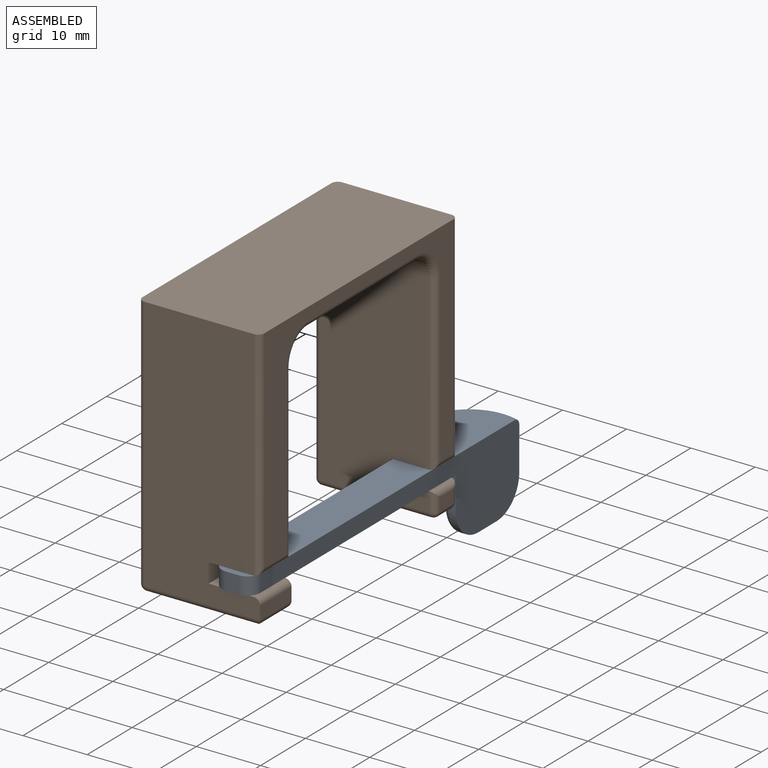
[diagram: assembled view]
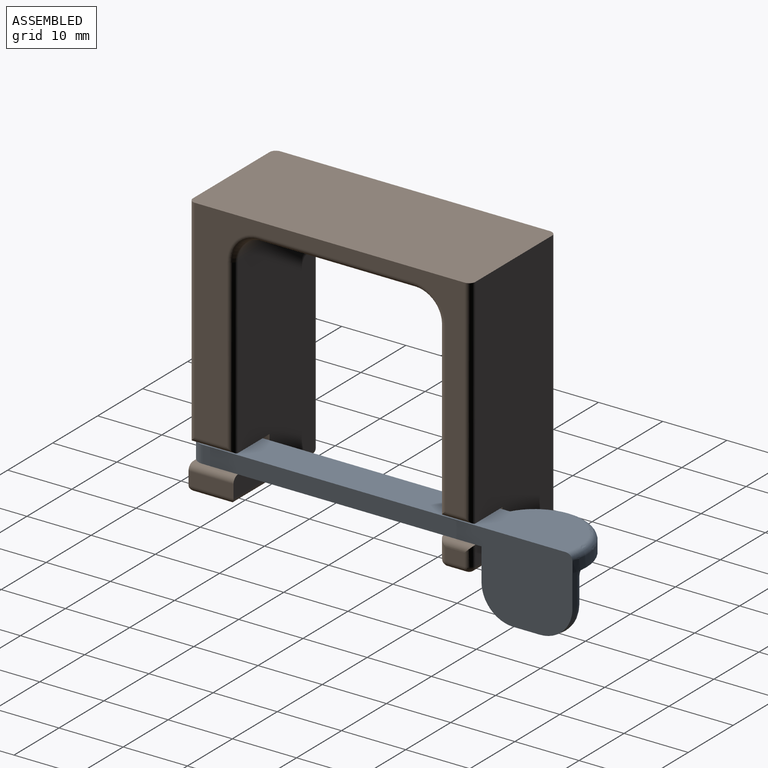
[diagram: assembled view, second angle]
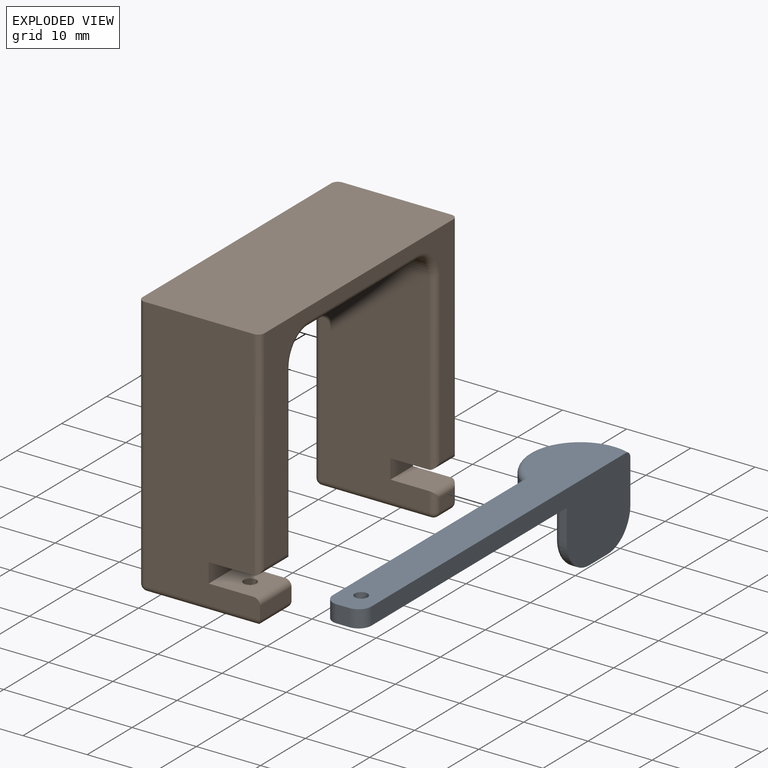
[diagram: exploded view]
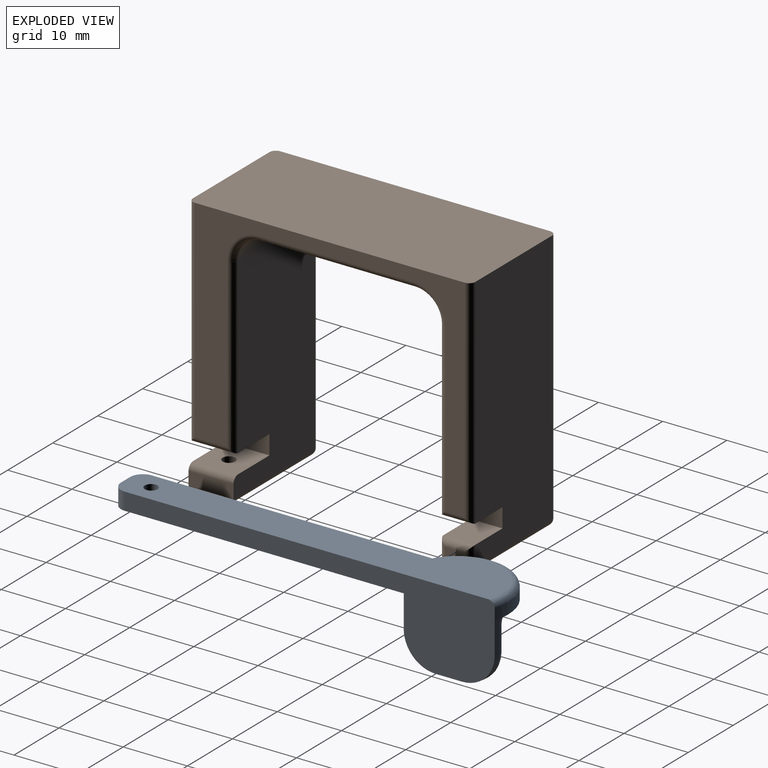
[diagram: exploded view, second angle]
ASSEMBLY  parts=2 mates=2
PART A: 25 faces, bbox 12.3x60.9x13.5 mm
  f0: bspline ~5.06x5mm, area 12.4mm2, adj f1,f2,f9,f16
  f1: cylinder r=1mm len=4mm, axis (0,0,-1), area 7mm2, adj f0,f3,f10,f16
  f2: cylinder r=1mm len=4.26mm, axis (0,-1,0), area 6.7mm2, adj f0,f15,f16,f17
  f3: bspline ~2.19x2.02mm, area 2.2mm2, adj f1,f10,f18,f19
  f4: plane 2.7x2mm, normal (0,-1,0), area 5.4mm2, adj f5,f13,f14,f19
  f5: cylinder r=2mm len=2.7mm, axis (0,0,-1), area 8.5mm2, adj f4,f6,f13,f19
  f6: plane 44.18x2.95mm, normal (-1,0,0), area 115.8mm2, adj f5,f11,f12,f13,f19
  f7: cylinder r=1mm len=2.7mm, axis (0,0,-1), area 8.5mm2, adj f8,f13,f19
  f8: cylinder r=1mm len=2.7mm, axis (0,0,-1), area 8.5mm2, adj f7,f13,f19
  f9: cylinder r=5mm len=5.22mm, axis (-0.99,0.17,0), area 7.3mm2, adj f0,f10,f15,f20
  f10: plane 5x1.1mm, normal (0.17,0.99,0), area 4.3mm2, adj f1,f3,f9,f19,f20
  f11: cylinder r=8mm len=15.19mm, axis (0,0,-1), area 40.9mm2, adj f6,f12,f19,f20
  f12: torus R=7mm, axis (0,0,-1), area 35.9mm2, adj f6,f11,f13,f20
  f13: plane 59.1x9.62mm, normal (0,0,1), area 377.8mm2, adj f4,f5,f6,f7,f8,f12,f14,f20
  f14: cylinder r=2mm len=2.7mm, axis (0,0,-1), area 8.5mm2, adj f4,f13,f19,f20
  f15: plane 4.26x1mm, normal (0,0,-1), area 4.2mm2, adj f2,f9,f20,f21
  f16: plane 12.32x8mm, normal (-1,0,0), area 91.6mm2, adj f0,f1,f2,f17,f18,f22
  f17: torus R=4mm, axis (1,0,0), area 11.4mm2, adj f2,f16,f21,f22
  f18: cylinder r=1mm len=12.66mm, axis (0,-1,0), area 19.6mm2, adj f3,f16,f19,f23
  f19: plane 60.46x10.95mm, normal (0,0,-1), area 358.3mm2, adj f3,f4,f5,f6,f7,f8,f10,f11
  f20: plane 57.96x13.06mm, normal (1,0,0), area 286.1mm2, adj f9,f10,f11,f12,f13,f14,f15,f19
  f21: cylinder r=5mm len=5mm, axis (1,0,0), area 7.9mm2, adj f15,f17,f20,f24
  f22: cylinder r=1mm len=4mm, axis (0,0,-1), area 6.3mm2, adj f16,f17,f23,f24
  f23: torus R=2mm, axis (0,1,0), area 2.1mm2, adj f18,f19,f22,f24
  f24: plane 5x1.27mm, normal (0,-1,0), area 5.1mm2, adj f19,f20,f21,f22,f23
PART B: 59 faces, bbox 19x44x41 mm
  f0: plane 2.04x2mm, normal (0,0,-1), area 3.1mm2, adj f1,f2
  f1: cylinder r=1mm len=9mm, axis (0,0,-1), area 28.3mm2, adj f0,f2,f10
  f2: cylinder r=1mm len=9mm, axis (0,0,-1), area 28.3mm2, adj f0,f1,f10
  f3: cylinder r=1mm len=7mm, axis (0,-1,0), area 9.9mm2, adj f10,f11,f19,f20
  f4: cylinder r=1mm len=7mm, axis (0,1,0), area 9.9mm2, adj f7,f12,f14,f22
  f5: cylinder r=1mm len=4mm, axis (0,0,-1), area 12.6mm2, adj f6,f8,f22
  f6: cylinder r=1mm len=4mm, axis (0,0,-1), area 12.6mm2, adj f5,f8,f22
  f7: cylinder r=1mm len=18mm, axis (1,0,0), area 27.7mm2, adj f4,f21,f22,f23
  f8: plane 7x7mm, normal (0,0,1), area 45.9mm2, adj f5,f6,f9,f13,f21,f24
  f9: plane 7x3mm, normal (1,0,0), area 21mm2, adj f8,f10,f21,f24
  f10: plane 7x7mm, normal (0,0,-1), area 45.9mm2, adj f1,f2,f3,f9,f21,f24
  f11: cylinder r=1mm len=27mm, axis (0,0,-1), area 41.8mm2, adj f3,f15,f19,f24
  f12: plane 7x2mm, normal (1,0,0), area 14mm2, adj f4,f13,f21,f24
  f13: cylinder r=1mm len=7mm, axis (0,1,0), area 11mm2, adj f8,f12,f21,f24
  f14: cylinder r=1mm len=18mm, axis (1,0,0), area 27.7mm2, adj f4,f22,f24,f25
  f15: torus R=5mm, axis (1,0,0), area 10.8mm2, adj f11,f16,f19,f26
  f16: cylinder r=1mm len=24mm, axis (0,1,0), area 37.7mm2, adj f15,f17,f19,f27
  f17: torus R=5mm, axis (1,0,0), area 10.8mm2, adj f16,f19,f31,f36
  f18: cylinder r=1mm len=5mm, axis (0,-1,0), area 6.7mm2, adj f19,f28,f35,f36
  f19: plane 42x33mm, normal (1,0,0), area 342.7mm2, adj f3,f11,f15,f16,f17,f18,f20,f28
  f20: cylinder r=1mm len=34mm, axis (0,0,-1), area 52.8mm2, adj f3,f19,f21,f37
  f21: plane 40x18mm, normal (0,-1,0), area 661.8mm2, adj f7,f8,f9,f10,f12,f13,f20,f37
  f22: plane 17x5mm, normal (0,0,-1), area 81.9mm2, adj f4,f5,f6,f7,f14,f39
  f23: sphere r=1mm, area 1.6mm2, adj f7,f38,f39
  f24: plane 33x18mm, normal (0,1,0), area 542.8mm2, adj f8,f9,f10,f11,f12,f13,f14,f26
  f25: sphere r=1mm, area 1.6mm2, adj f14,f39,f40
  f26: cylinder r=4mm len=17mm, axis (1,0,0), area 106.8mm2, adj f15,f24,f27,f41
  f27: plane 24x17mm, normal (0,0,-1), area 408mm2, adj f16,f26,f31,f42
  f28: cylinder r=1mm len=34mm, axis (0,0,1), area 52.8mm2, adj f18,f19,f37,f46
  f29: cylinder r=1mm len=3mm, axis (0,0,1), area 4.1mm2, adj f30,f46,f47,f48
  f30: cylinder r=1mm len=5mm, axis (0,1,0), area 6.7mm2, adj f29,f32,f33,f48
  f31: cylinder r=4mm len=17mm, axis (1,0,0), area 106.8mm2, adj f17,f27,f43,f50
  f32: cylinder r=1mm len=3mm, axis (0,0,-1), area 4.1mm2, adj f30,f48,f49,f50
  f33: plane 6x5mm, normal (0,0,1), area 30mm2, adj f30,f34,f46,f50
  f34: plane 5x3mm, normal (1,0,0), area 15mm2, adj f33,f35,f46,f50
  f35: plane 6x5mm, normal (0,0,-1), area 30mm2, adj f18,f34,f46,f50
  f36: cylinder r=1mm len=27mm, axis (0,0,-1), area 41.8mm2, adj f17,f18,f19,f50
  f37: plane 44x19mm, normal (0,0,1), area 835.1mm2, adj f19,f20,f21,f28,f38,f45,f46,f52
  f38: cylinder r=1mm len=40mm, axis (0,0,-1), area 62.8mm2, adj f21,f23,f37,f52
  f39: cylinder r=1mm len=5mm, axis (0,1,0), area 7.9mm2, adj f22,f23,f25,f52
  f40: cylinder r=1mm len=33mm, axis (0,0,-1), area 51.8mm2, adj f24,f25,f41,f52
  f41: torus R=5mm, axis (1,0,0), area 10.8mm2, adj f26,f40,f42,f52
  f42: cylinder r=1mm len=24mm, axis (0,1,0), area 37.7mm2, adj f27,f41,f43,f52
  f43: torus R=5mm, axis (1,0,0), area 10.8mm2, adj f31,f42,f44,f52
  f44: cylinder r=1mm len=33mm, axis (0,0,-1), area 51.8mm2, adj f43,f50,f51,f52
  f45: cylinder r=1mm len=40mm, axis (0,0,1), area 62.8mm2, adj f37,f46,f52,f53
  f46: plane 40x17mm, normal (0,1,0), area 662mm2, adj f28,f29,f33,f34,f35,f37,f45,f54
  f47: sphere r=1mm, area 1.6mm2, adj f29,f54,f55
  f48: plane 3x2mm, normal (1,0,0), area 6mm2, adj f29,f30,f32,f55
  f49: sphere r=1mm, area 1.6mm2, adj f32,f55,f56
  f50: plane 33x17mm, normal (0,-1,0), area 543mm2, adj f31,f32,f33,f34,f35,f36,f44,f56
  f51: sphere r=1mm, area 1.6mm2, adj f44,f56,f57
  f52: plane 42x40mm, normal (-1,0,0), area 398.7mm2, adj f37,f38,f39,f40,f41,f42,f43,f44
  f53: sphere r=1mm, area 1.6mm2, adj f45,f54,f57
  f54: cylinder r=1mm len=17mm, axis (1,0,0), area 26.7mm2, adj f46,f47,f53,f58
  f55: cylinder r=1mm len=3mm, axis (0,1,0), area 4.7mm2, adj f47,f48,f49,f58
  f56: cylinder r=1mm len=17mm, axis (1,0,0), area 26.7mm2, adj f49,f50,f51,f58
  f57: cylinder r=1mm len=3mm, axis (0,1,0), area 4.7mm2, adj f51,f52,f53,f58
  f58: plane 17x3mm, normal (0,0,-1), area 51mm2, adj f54,f55,f56,f57
PLACE A t=(-13.17,-38.94,3.42)mm
PLACE B t=(-14.17,-36.44,3.72)mm
MATE parallel B.f8 <-> A.f19  axis (0,0,1) through (0.33,-31.44,7.72)mm
MATE cylindrical A.f19 <-> B.f22  axis (0,0,-1) through (0.83,-33.94,7.72)mm
